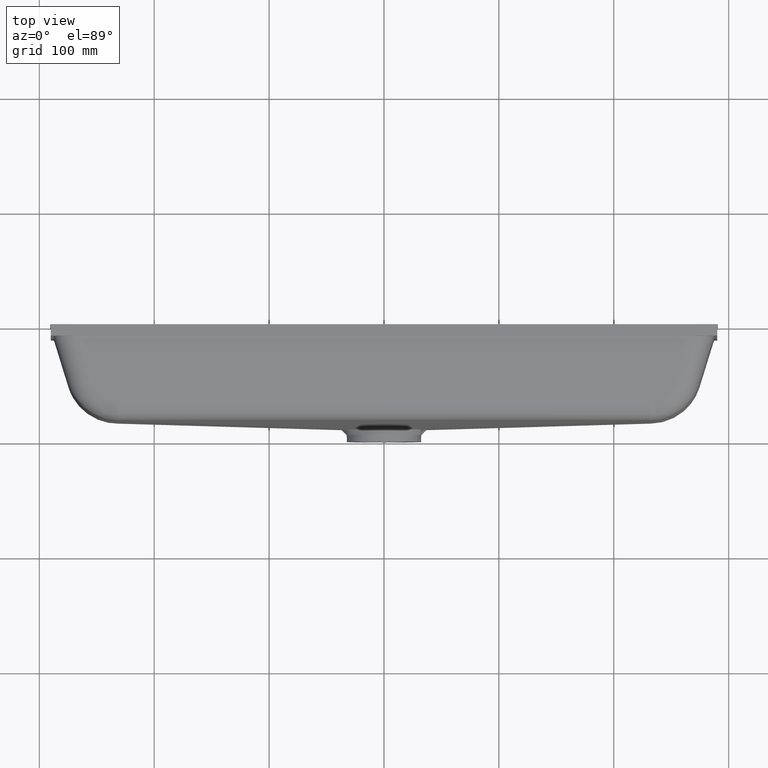
[diagram: clean part render]
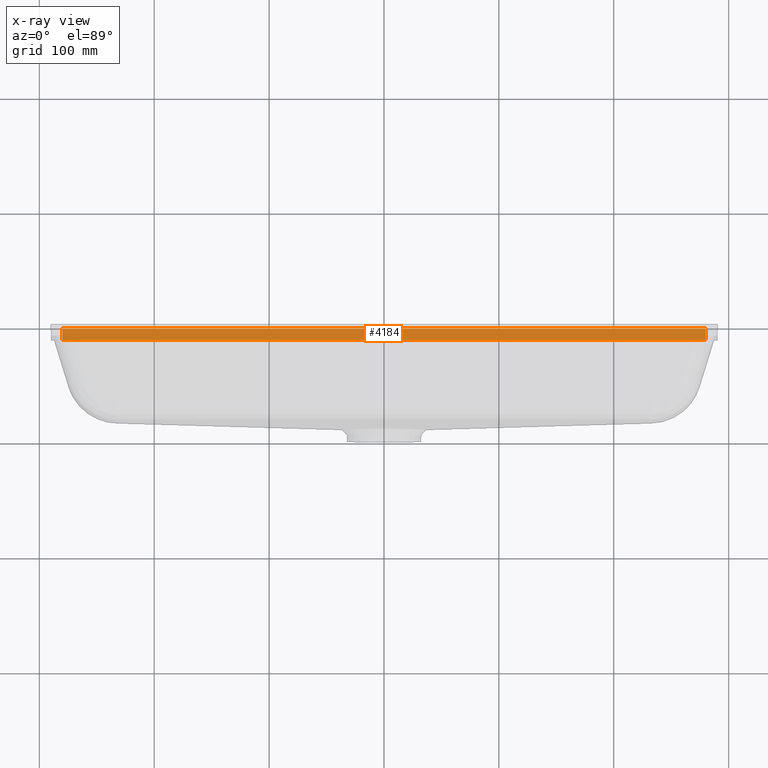
[diagram: x-ray — body ghosted, one internal face saturated and labeled with its STEP entity id]
A machine part, top view, then the same camera in x-ray: the body is ghosted and one INTERNAL B-rep face — a face not visible from any outside direction — is saturated and labeled: STEP entity #4184.
In plain terms, the highlighted planar face has unit normal (0, 0, -1).
Its self-contained STEP definition (entity closure, byte-faithful):
#73 = CARTESIAN_POINT ( 'NONE',  ( 280.0000000000000000, -10.00000000000000000, -110.0000000000000400 ) ) ;
#105 = VERTEX_POINT ( 'NONE', #1443 ) ;
#188 = EDGE_CURVE ( 'NONE', #4435, #105, #2132, .T. ) ;
#379 = DIRECTION ( 'NONE',  ( 0.0000000000000000000, 1.000000000000000000, 0.0000000000000000000 ) ) ;
#445 = DIRECTION ( 'NONE',  ( -1.000000000000000000, -0.0000000000000000000, -0.0000000000000000000 ) ) ;
#489 = FACE_OUTER_BOUND ( 'NONE', #1547, .T. ) ;
#507 = ORIENTED_EDGE ( 'NONE', *, *, #4414, .F. ) ;
#571 = LINE ( 'NONE', #1474, #6249 ) ;
#1210 = CARTESIAN_POINT ( 'NONE',  ( -280.0000000000000000, 0.0000000000000000000, -110.0000000000000400 ) ) ;
#1443 = CARTESIAN_POINT ( 'NONE',  ( 280.0000000000000000, 0.0000000000000000000, -110.0000000000000400 ) ) ;
#1474 = CARTESIAN_POINT ( 'NONE',  ( -280.0000000000000000, -10.00000000000000000, -110.0000000000000400 ) ) ;
#1547 = EDGE_LOOP ( 'NONE', ( #2111, #4441, #507, #1567 ) ) ;
#1567 = ORIENTED_EDGE ( 'NONE', *, *, #188, .T. ) ;
#1893 = AXIS2_PLACEMENT_3D ( 'NONE', #6022, #6471, #3268 ) ;
#2111 = ORIENTED_EDGE ( 'NONE', *, *, #4900, .T. ) ;
#2132 = LINE ( 'NONE', #4763, #3014 ) ;
#2395 = VECTOR ( 'NONE', #2786, 1000.000000000000000 ) ;
#2786 = DIRECTION ( 'NONE',  ( 0.0000000000000000000, 1.000000000000000000, 0.0000000000000000000 ) ) ;
#3014 = VECTOR ( 'NONE', #379, 1000.000000000000000 ) ;
#3268 = DIRECTION ( 'NONE',  ( -1.000000000000000000, 0.0000000000000000000, -0.0000000000000000000 ) ) ;
#3372 = EDGE_CURVE ( 'NONE', #5916, #6616, #6841, .T. ) ;
#3529 = VECTOR ( 'NONE', #3646, 1000.000000000000000 ) ;
#3646 = DIRECTION ( 'NONE',  ( -1.000000000000000000, -0.0000000000000000000, -0.0000000000000000000 ) ) ;
#3777 = CARTESIAN_POINT ( 'NONE',  ( -280.0000000000000000, -10.00000000000000000, -110.0000000000000400 ) ) ;
#4184 = ADVANCED_FACE ( 'NONE', ( #489 ), #5363, .F. ) ;
#4331 = CARTESIAN_POINT ( 'NONE',  ( -280.0000000000000000, 0.0000000000000000000, -110.0000000000000400 ) ) ;
#4414 = EDGE_CURVE ( 'NONE', #4435, #5916, #571, .T. ) ;
#4435 = VERTEX_POINT ( 'NONE', #73 ) ;
#4441 = ORIENTED_EDGE ( 'NONE', *, *, #3372, .F. ) ;
#4763 = CARTESIAN_POINT ( 'NONE',  ( 280.0000000000000000, -10.00000000000000000, -110.0000000000000400 ) ) ;
#4900 = EDGE_CURVE ( 'NONE', #105, #6616, #5502, .T. ) ;
#5324 = CARTESIAN_POINT ( 'NONE',  ( -280.0000000000000000, -10.00000000000000000, -110.0000000000000400 ) ) ;
#5363 = PLANE ( 'NONE',  #1893 ) ;
#5502 = LINE ( 'NONE', #1210, #3529 ) ;
#5916 = VERTEX_POINT ( 'NONE', #3777 ) ;
#6022 = CARTESIAN_POINT ( 'NONE',  ( -280.0000000000000000, -10.00000000000000000, -110.0000000000000400 ) ) ;
#6249 = VECTOR ( 'NONE', #445, 1000.000000000000000 ) ;
#6471 = DIRECTION ( 'NONE',  ( 0.0000000000000000000, 0.0000000000000000000, -1.000000000000000000 ) ) ;
#6616 = VERTEX_POINT ( 'NONE', #4331 ) ;
#6841 = LINE ( 'NONE', #5324, #2395 ) ;